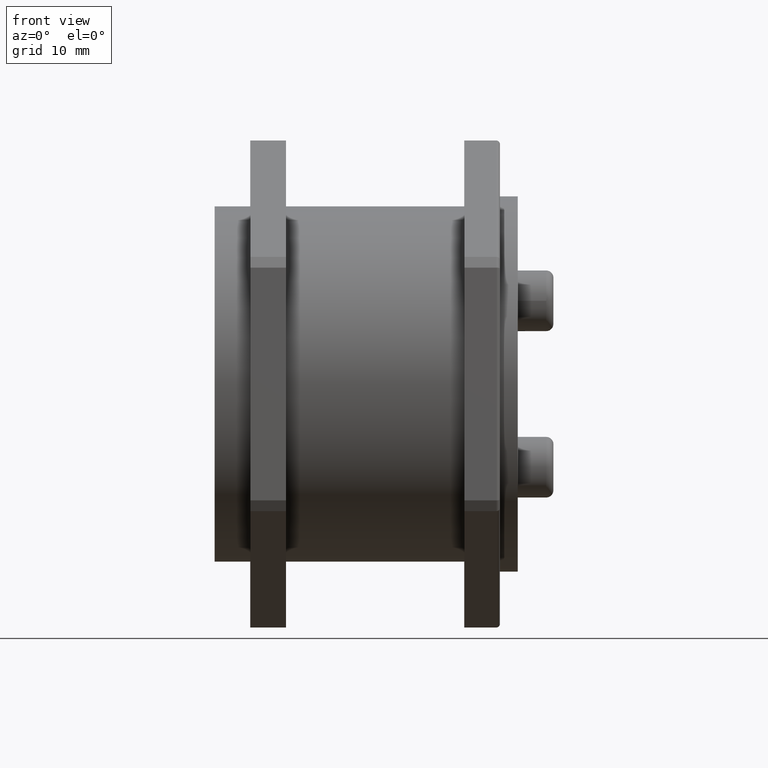
[diagram: clean part render]
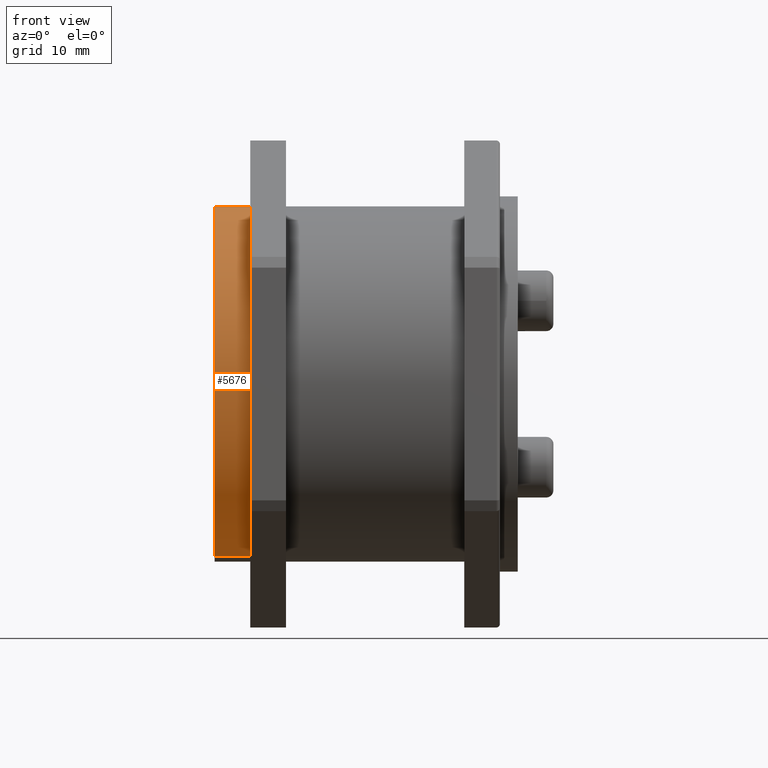
[diagram: same view with one face highlighted and labeled with its STEP entity id]
A machine part, front view. The second image highlights one B-rep face of the part: STEP entity #5676.
In plain terms, the highlighted cylindrical surface (partial cylindrical patch) has radius 25 mm, axis along (-1, 0, 0).
Its self-contained STEP definition (entity closure, byte-faithful):
#5635=CARTESIAN_POINT('',(0.0,0.0,5.0));
#5636=DIRECTION('',(0.0,0.0,1.0));
#5637=DIRECTION('',(-1.0,0.0,0.0));
#5638=AXIS2_PLACEMENT_3D('',#5635,#5636,#5637);
#5639=CYLINDRICAL_SURFACE('',#5638,25.0);
#5640=CARTESIAN_POINT('',(-25.0,3.061516E-015,35.0));
#5641=VERTEX_POINT('',#5640);
#5642=CARTESIAN_POINT('',(-25.0,3.061516E-015,40.0));
#5643=VERTEX_POINT('',#5642);
#5644=CARTESIAN_POINT('',(-25.0,3.061516E-015,35.0));
#5645=DIRECTION('',(0.0,0.0,1.0));
#5646=VECTOR('',#5645,5.0);
#5647=LINE('',#5644,#5646);
#5648=EDGE_CURVE('',#5641,#5643,#5647,.T.);
#5649=ORIENTED_EDGE('',*,*,#5648,.F.);
#5650=CARTESIAN_POINT('',(25.0,3.061516E-015,35.0));
#5651=VERTEX_POINT('',#5650);
#5652=CARTESIAN_POINT('',(0.0,0.0,35.0));
#5653=DIRECTION('',(0.0,0.0,1.0));
#5654=DIRECTION('',(-1.0,0.0,0.0));
#5655=AXIS2_PLACEMENT_3D('',#5652,#5653,#5654);
#5656=CIRCLE('',#5655,25.0);
#5657=EDGE_CURVE('',#5641,#5651,#5656,.T.);
#5658=ORIENTED_EDGE('',*,*,#5657,.T.);
#5659=CARTESIAN_POINT('',(25.0,3.061516E-015,40.0));
#5660=VERTEX_POINT('',#5659);
#5661=CARTESIAN_POINT('',(25.0,3.061516E-015,40.0));
#5662=DIRECTION('',(0.0,0.0,-1.0));
#5663=VECTOR('',#5662,5.0);
#5664=LINE('',#5661,#5663);
#5665=EDGE_CURVE('',#5660,#5651,#5664,.T.);
#5666=ORIENTED_EDGE('',*,*,#5665,.F.);
#5667=CARTESIAN_POINT('',(0.0,0.0,40.0));
#5668=DIRECTION('',(0.0,0.0,-1.0));
#5669=DIRECTION('',(-1.0,0.0,0.0));
#5670=AXIS2_PLACEMENT_3D('',#5667,#5668,#5669);
#5671=CIRCLE('',#5670,25.0);
#5672=EDGE_CURVE('',#5660,#5643,#5671,.T.);
#5673=ORIENTED_EDGE('',*,*,#5672,.T.);
#5674=EDGE_LOOP('',(#5649,#5658,#5666,#5673));
#5675=FACE_OUTER_BOUND('',#5674,.T.);
#5676=ADVANCED_FACE('',(#5675),#5639,.T.);